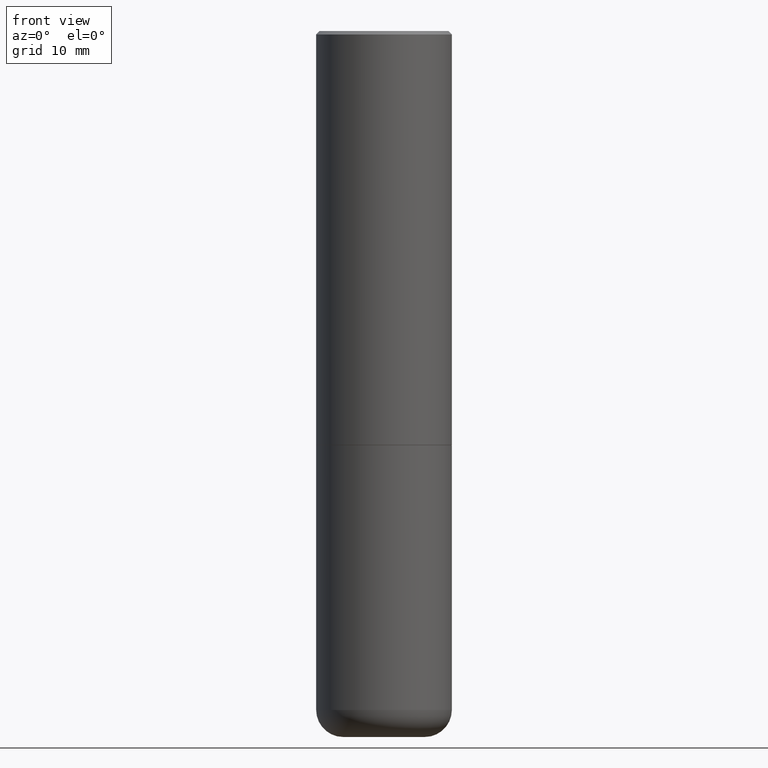
[diagram: clean part render]
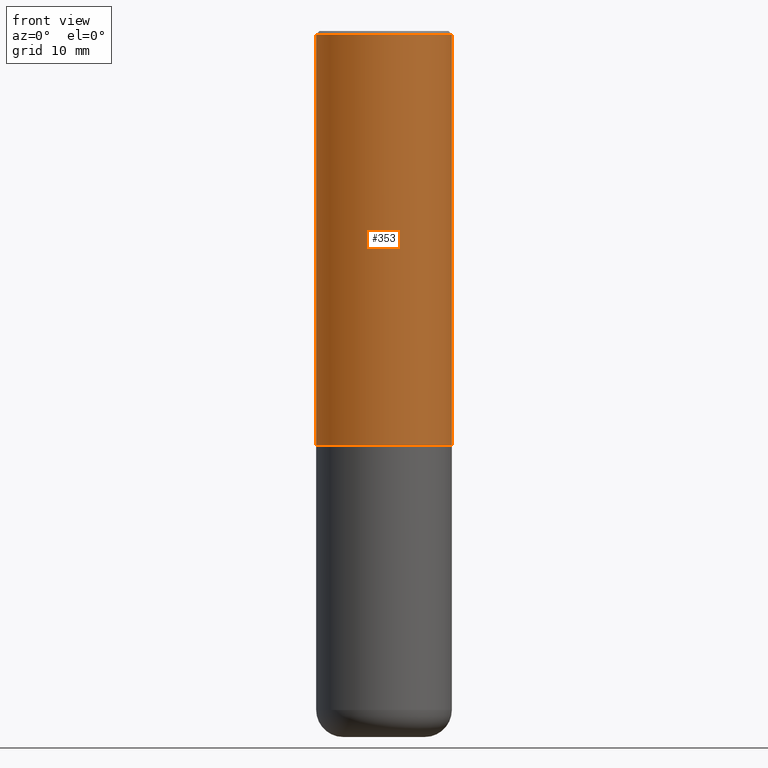
[diagram: same view with one face highlighted and labeled with its STEP entity id]
A machine part, front view. The second image highlights one B-rep face of the part: STEP entity #353.
In plain terms, the highlighted cylindrical surface (partial cylindrical patch) has radius 10 mm, axis along (-0, 0, 1).
Its self-contained STEP definition (entity closure, byte-faithful):
#9 = CARTESIAN_POINT ( 'NONE',  ( -0.3937000000000003830, -1.428333113714341032E-15, -2.400600000000000289 ) ) ;
#18 = CARTESIAN_POINT ( 'NONE',  ( -0.3937000000000001609, 2.797406750687515575E-15, -1.936584745033357296E-29 ) ) ;
#20 = EDGE_CURVE ( 'NONE', #28, #177, #35, .T. ) ;
#28 = VERTEX_POINT ( 'NONE', #96 ) ;
#35 = LINE ( 'NONE', #127, #230 ) ;
#53 = EDGE_CURVE ( 'NONE', #116, #177, #418, .T. ) ;
#56 = CYLINDRICAL_SURFACE ( 'NONE', #238, 0.3937000000000001609 ) ;
#82 = EDGE_LOOP ( 'NONE', ( #145, #180, #317, #414 ) ) ;
#86 = DIRECTION ( 'NONE',  ( 1.000000000000000000, -6.982962677686266711E-15, 4.876176775795935793E-29 ) ) ;
#90 = CARTESIAN_POINT ( 'NONE',  ( 0.3937000000000000499, -2.770807688499515734E-15, -0.02000000000000008715 ) ) ;
#91 = AXIS2_PLACEMENT_3D ( 'NONE', #281, #391, #360 ) ;
#96 = CARTESIAN_POINT ( 'NONE',  ( 0.3937000000000002720, -1.113084250823194063E-14, -2.400600000000000289 ) ) ;
#113 = DIRECTION ( 'NONE',  ( -2.445468806185136597E-29, 3.491481338843145583E-15, 1.000000000000000000 ) ) ;
#116 = VERTEX_POINT ( 'NONE', #307 ) ;
#127 = CARTESIAN_POINT ( 'NONE',  ( 0.3937000000000001609, -2.749192406205084400E-15, 1.919750796630860732E-29 ) ) ;
#145 = ORIENTED_EDGE ( 'NONE', *, *, #169, .F. ) ;
#154 = CARTESIAN_POINT ( 'NONE',  ( 5.870592416128038746E-29, -8.381650102026855834E-15, -2.400600000000000289 ) ) ;
#169 = EDGE_CURVE ( 'NONE', #322, #116, #173, .T. ) ;
#173 = LINE ( 'NONE', #18, #388 ) ;
#175 = AXIS2_PLACEMENT_3D ( 'NONE', #154, #189, #283 ) ;
#177 = VERTEX_POINT ( 'NONE', #90 ) ;
#180 = ORIENTED_EDGE ( 'NONE', *, *, #402, .T. ) ;
#181 = DIRECTION ( 'NONE',  ( -2.445468806185136877E-29, 3.491481338843145188E-15, 1.000000000000000000 ) ) ;
#189 = DIRECTION ( 'NONE',  ( -2.445468806185136597E-29, 3.491481338843145583E-15, 1.000000000000000000 ) ) ;
#212 = FACE_OUTER_BOUND ( 'NONE', #82, .T. ) ;
#220 = CARTESIAN_POINT ( 'NONE',  ( 0.000000000000000000, 0.000000000000000000, 0.000000000000000000 ) ) ;
#225 = CIRCLE ( 'NONE', #175, 0.3937000000000002720 ) ;
#230 = VECTOR ( 'NONE', #390, 39.37007874015748143 ) ;
#238 = AXIS2_PLACEMENT_3D ( 'NONE', #220, #113, #86 ) ;
#281 = CARTESIAN_POINT ( 'NONE',  ( 4.890937612370294178E-31, -6.982962677686321191E-17, -0.02000000000000008715 ) ) ;
#283 = DIRECTION ( 'NONE',  ( 1.000000000000000000, -6.982962677686265922E-15, 0.000000000000000000 ) ) ;
#307 = CARTESIAN_POINT ( 'NONE',  ( -0.3937000000000000499, 2.679362779428219918E-15, -0.02000000000000008715 ) ) ;
#317 = ORIENTED_EDGE ( 'NONE', *, *, #20, .T. ) ;
#322 = VERTEX_POINT ( 'NONE', #9 ) ;
#353 = ADVANCED_FACE ( 'NONE', ( #212 ), #56, .T. ) ;
#360 = DIRECTION ( 'NONE',  ( 1.000000000000000000, -6.982962677686265922E-15, 0.000000000000000000 ) ) ;
#388 = VECTOR ( 'NONE', #181, 39.37007874015748143 ) ;
#390 = DIRECTION ( 'NONE',  ( -2.445468806185136877E-29, 3.491481338843145188E-15, 1.000000000000000000 ) ) ;
#391 = DIRECTION ( 'NONE',  ( -2.445468806185136597E-29, 3.491481338843145583E-15, 1.000000000000000000 ) ) ;
#402 = EDGE_CURVE ( 'NONE', #322, #28, #225, .T. ) ;
#414 = ORIENTED_EDGE ( 'NONE', *, *, #53, .F. ) ;
#418 = CIRCLE ( 'NONE', #91, 0.3937000000000000499 ) ;